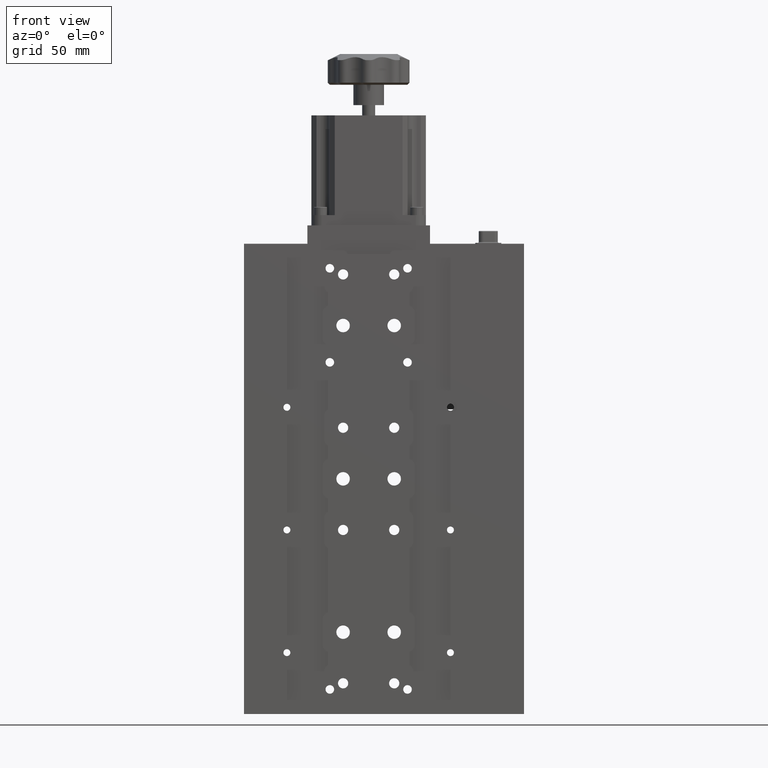
[diagram: clean part render]
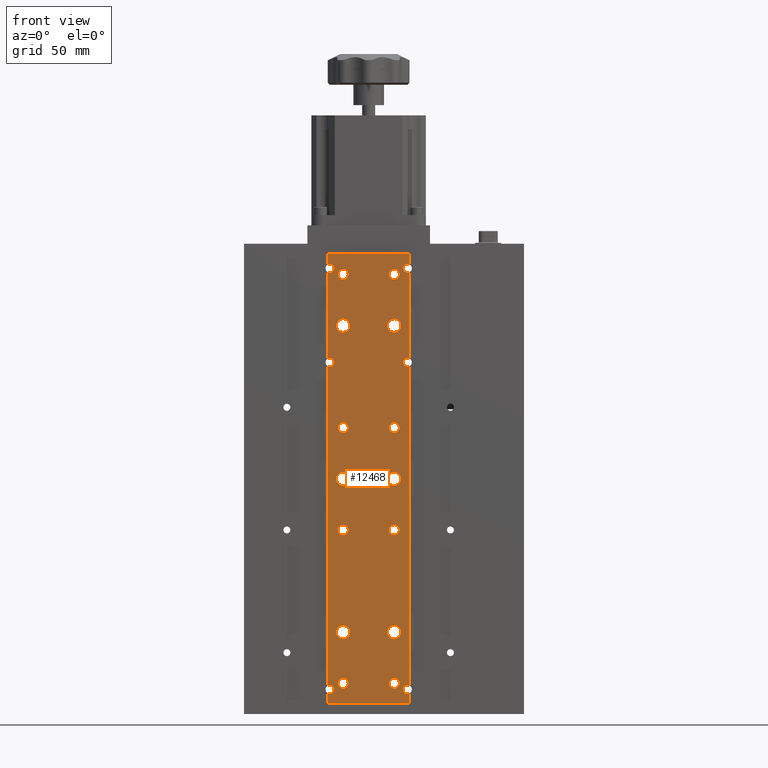
[diagram: same view with one face highlighted and labeled with its STEP entity id]
A machine part, front view. The second image highlights one B-rep face of the part: STEP entity #12468.
In plain terms, the highlighted planar face has unit normal (-0, 1, 0).
Its self-contained STEP definition (entity closure, byte-faithful):
#7 = VERTEX_POINT ( 'NONE', #35236 ) ;
#74 = EDGE_CURVE ( 'NONE', #13655, #19720, #29877, .T. ) ;
#163 = EDGE_CURVE ( 'NONE', #23391, #18481, #18264, .T. ) ;
#210 = CARTESIAN_POINT ( 'NONE',  ( 1.889191643960038200, -10.41765062064795100, -22.50000000000002100 ) ) ;
#300 = CARTESIAN_POINT ( 'NONE',  ( -30.61080835603996400, -10.41765062064794600, 101.1533814687380600 ) ) ;
#319 = VERTEX_POINT ( 'NONE', #24890 ) ;
#331 = DIRECTION ( 'NONE',  ( -3.689503073101735200E-032, 1.000000000000000000, 0.0000000000000000000 ) ) ;
#334 = ORIENTED_EDGE ( 'NONE', *, *, #8758, .T. ) ;
#611 = DIRECTION ( 'NONE',  ( 0.0000000000000000000, 0.0000000000000000000, 1.000000000000000000 ) ) ;
#769 = CARTESIAN_POINT ( 'NONE',  ( -23.11080835603996400, -10.41765062064794900, -22.50000000000002100 ) ) ;
#798 = VERTEX_POINT ( 'NONE', #35733 ) ;
#828 = CIRCLE ( 'NONE', #29492, 3.299999999999997200 ) ;
#915 = AXIS2_PLACEMENT_3D ( 'NONE', #25791, #8098, #28804 ) ;
#936 = DIRECTION ( 'NONE',  ( -3.689503073101735200E-032, 1.000000000000000000, 0.0000000000000000000 ) ) ;
#1067 = CIRCLE ( 'NONE', #36989, 3.299999999999997200 ) ;
#1087 = EDGE_CURVE ( 'NONE', #30317, #12799, #13424, .T. ) ;
#1179 = DIRECTION ( 'NONE',  ( -3.029454718961704600E-018, 1.000000000000000000, 0.0000000000000000000 ) ) ;
#1230 = EDGE_LOOP ( 'NONE', ( #31576, #36300 ) ) ;
#1477 = EDGE_CURVE ( 'NONE', #18481, #23391, #828, .T. ) ;
#1489 = DIRECTION ( 'NONE',  ( -3.689503073101735200E-032, 1.000000000000000000, 0.0000000000000000000 ) ) ;
#1515 = CARTESIAN_POINT ( 'NONE',  ( 1.889191643960030000, -10.41765062064795100, -3.299999999999990500 ) ) ;
#1526 = CARTESIAN_POINT ( 'NONE',  ( 8.389191643960048200, -10.41765062064794900, -105.1000000000000200 ) ) ;
#1527 = CIRCLE ( 'NONE', #4375, 3.299999999999997200 ) ;
#1621 = CIRCLE ( 'NONE', #4555, 2.099999999999992500 ) ;
#1865 = DIRECTION ( 'NONE',  ( -3.689503073101735200E-032, 1.000000000000000000, 0.0000000000000000000 ) ) ;
#1944 = ORIENTED_EDGE ( 'NONE', *, *, #23057, .T. ) ;
#1964 = DIRECTION ( 'NONE',  ( 0.0000000000000000000, 0.0000000000000000000, 1.000000000000000000 ) ) ;
#1970 = CIRCLE ( 'NONE', #13705, 2.499999999999995100 ) ;
#2168 = DIRECTION ( 'NONE',  ( -3.689503073101735200E-032, 1.000000000000000000, 0.0000000000000000000 ) ) ;
#2216 = VERTEX_POINT ( 'NONE', #25261 ) ;
#2352 = ORIENTED_EDGE ( 'NONE', *, *, #4692, .T. ) ;
#2441 = VERTEX_POINT ( 'NONE', #300 ) ;
#2572 = DIRECTION ( 'NONE',  ( 0.0000000000000000000, 0.0000000000000000000, 1.000000000000000000 ) ) ;
#2665 = AXIS2_PLACEMENT_3D ( 'NONE', #29030, #11299, #32004 ) ;
#2694 = DIRECTION ( 'NONE',  ( 0.0000000000000000000, 0.0000000000000000000, 1.000000000000000000 ) ) ;
#2871 = CARTESIAN_POINT ( 'NONE',  ( -23.11080835603996400, -10.41765062064795100, -75.00000000000004300 ) ) ;
#3091 = ORIENTED_EDGE ( 'NONE', *, *, #25057, .T. ) ;
#3203 = DIRECTION ( 'NONE',  ( -3.029454718961704600E-018, 1.000000000000000000, 0.0000000000000000000 ) ) ;
#3317 = CARTESIAN_POINT ( 'NONE',  ( 1.889191643960038500, -10.41765062064795300, 22.50000000000003600 ) ) ;
#3412 = FACE_BOUND ( 'NONE', #9287, .T. ) ;
#3420 = CIRCLE ( 'NONE', #15843, 3.299999999999997200 ) ;
#3555 = AXIS2_PLACEMENT_3D ( 'NONE', #26510, #8815, #29489 ) ;
#3567 = CIRCLE ( 'NONE', #4076, 2.500000000000002200 ) ;
#3596 = DIRECTION ( 'NONE',  ( 0.0000000000000000000, 0.0000000000000000000, 1.000000000000000000 ) ) ;
#3636 = CARTESIAN_POINT ( 'NONE',  ( -29.61080835603996400, -10.41765062064794900, -105.0999999999999900 ) ) ;
#3654 = EDGE_CURVE ( 'NONE', #17517, #18899, #3848, .T. ) ;
#3712 = EDGE_CURVE ( 'NONE', #30897, #16512, #12151, .T. ) ;
#3761 = ORIENTED_EDGE ( 'NONE', *, *, #163, .T. ) ;
#3765 = ORIENTED_EDGE ( 'NONE', *, *, #10013, .T. ) ;
#3786 = VERTEX_POINT ( 'NONE', #37012 ) ;
#3845 = DIRECTION ( 'NONE',  ( 0.0000000000000000000, 0.0000000000000000000, 1.000000000000000000 ) ) ;
#3848 = CIRCLE ( 'NONE', #18045, 3.299999999999997200 ) ;
#3970 = CIRCLE ( 'NONE', #27897, 2.099999999999997900 ) ;
#4040 = DIRECTION ( 'NONE',  ( -3.689503073101735200E-032, 1.000000000000000000, 0.0000000000000000000 ) ) ;
#4076 = AXIS2_PLACEMENT_3D ( 'NONE', #26361, #8659, #29337 ) ;
#4360 = FACE_BOUND ( 'NONE', #14785, .T. ) ;
#4375 = AXIS2_PLACEMENT_3D ( 'NONE', #27758, #10047, #30715 ) ;
#4550 = VERTEX_POINT ( 'NONE', #9975 ) ;
#4555 = AXIS2_PLACEMENT_3D ( 'NONE', #20934, #3203, #23910 ) ;
#4692 = EDGE_CURVE ( 'NONE', #4765, #34354, #36132, .T. ) ;
#4728 = LINE ( 'NONE', #10569, #19490 ) ;
#4752 = EDGE_CURVE ( 'NONE', #6655, #17128, #28244, .T. ) ;
#4765 = VERTEX_POINT ( 'NONE', #5051 ) ;
#4830 = CARTESIAN_POINT ( 'NONE',  ( -29.61080835603995700, -10.41765062064794900, 59.10000000000003000 ) ) ;
#4992 = CARTESIAN_POINT ( 'NONE',  ( -29.61080835603996400, -10.41765062064794900, 57.00000000000002800 ) ) ;
#5051 = CARTESIAN_POINT ( 'NONE',  ( -23.11080835603995700, -10.41765062064795100, -102.5000000000000600 ) ) ;
#5052 = AXIS2_PLACEMENT_3D ( 'NONE', #8193, #28897, #11172 ) ;
#5066 = AXIS2_PLACEMENT_3D ( 'NONE', #9271, #29921, #12200 ) ;
#5127 = DIRECTION ( 'NONE',  ( -1.000000000000000000, -3.029454718961630700E-018, 0.0000000000000000000 ) ) ;
#5156 = EDGE_CURVE ( 'NONE', #11420, #14132, #36952, .T. ) ;
#5179 = CARTESIAN_POINT ( 'NONE',  ( 1.889191643960029600, -10.41765062064795100, 5.204170427930439400E-015 ) ) ;
#5241 = ORIENTED_EDGE ( 'NONE', *, *, #32028, .T. ) ;
#5296 = FACE_BOUND ( 'NONE', #1230, .T. ) ;
#5463 = EDGE_LOOP ( 'NONE', ( #31289, #35993 ) ) ;
#5467 = AXIS2_PLACEMENT_3D ( 'NONE', #18886, #1179, #21867 ) ;
#5553 = VERTEX_POINT ( 'NONE', #27714 ) ;
#5581 = CARTESIAN_POINT ( 'NONE',  ( -29.61080835603996400, -10.41765062064794900, 57.00000000000002800 ) ) ;
#5770 = CARTESIAN_POINT ( 'NONE',  ( 9.389191643960026900, -10.41765062064794900, 104.8466185312619200 ) ) ;
#5817 = VECTOR ( 'NONE', #5830, 1000.000000000000000 ) ;
#5830 = DIRECTION ( 'NONE',  ( -1.000000000000000000, -3.029454718961630700E-018, 0.0000000000000000000 ) ) ;
#5897 = DIRECTION ( 'NONE',  ( 0.0000000000000000000, 0.0000000000000000000, 1.000000000000000000 ) ) ;
#5925 = ORIENTED_EDGE ( 'NONE', *, *, #11631, .T. ) ;
#5954 = DIRECTION ( 'NONE',  ( -3.689503073101735200E-032, 1.000000000000000000, 0.0000000000000000000 ) ) ;
#6055 = EDGE_CURVE ( 'NONE', #14368, #2216, #3970, .T. ) ;
#6077 = VERTEX_POINT ( 'NONE', #15746 ) ;
#6080 = VERTEX_POINT ( 'NONE', #24802 ) ;
#6110 = AXIS2_PLACEMENT_3D ( 'NONE', #37384, #19665, #1964 ) ;
#6149 = CARTESIAN_POINT ( 'NONE',  ( 9.389191643960037600, -10.41765062064794900, -110.0000000000000000 ) ) ;
#6181 = CARTESIAN_POINT ( 'NONE',  ( -23.11080835603995700, -10.41765062064795100, 99.99999999999997200 ) ) ;
#6388 = AXIS2_PLACEMENT_3D ( 'NONE', #12500, #33200, #15440 ) ;
#6451 = CARTESIAN_POINT ( 'NONE',  ( -30.61080835603996400, -10.41765062064794900, -150.0780488547035000 ) ) ;
#6563 = EDGE_LOOP ( 'NONE', ( #3091, #21632 ) ) ;
#6655 = VERTEX_POINT ( 'NONE', #25609 ) ;
#6708 = AXIS2_PLACEMENT_3D ( 'NONE', #4992, #25636, #7940 ) ;
#6710 = EDGE_CURVE ( 'NONE', #30582, #7, #12246, .T. ) ;
#7090 = CARTESIAN_POINT ( 'NONE',  ( 1.889191643960029600, -10.41765062064795100, 78.29999999999999700 ) ) ;
#7252 = CARTESIAN_POINT ( 'NONE',  ( -23.11080835603995700, -10.41765062064795100, -97.50000000000005700 ) ) ;
#7288 = DIRECTION ( 'NONE',  ( -3.689503073101735200E-032, 1.000000000000000000, 0.0000000000000000000 ) ) ;
#7512 = EDGE_LOOP ( 'NONE', ( #27814, #25047 ) ) ;
#7531 = AXIS2_PLACEMENT_3D ( 'NONE', #27502, #9811, #30471 ) ;
#7722 = EDGE_CURVE ( 'NONE', #11773, #21607, #36284, .T. ) ;
#7779 = AXIS2_PLACEMENT_3D ( 'NONE', #29032, #11301, #32006 ) ;
#7876 = AXIS2_PLACEMENT_3D ( 'NONE', #29644, #11911, #32613 ) ;
#7896 = VERTEX_POINT ( 'NONE', #38396 ) ;
#7940 = DIRECTION ( 'NONE',  ( 0.0000000000000000000, 0.0000000000000000000, 1.000000000000000000 ) ) ;
#7958 = DIRECTION ( 'NONE',  ( -3.689503073101735200E-032, 1.000000000000000000, 0.0000000000000000000 ) ) ;
#7999 = CARTESIAN_POINT ( 'NONE',  ( 1.889191643960029600, -10.41765062064795100, -75.00000000000000000 ) ) ;
#8000 = VERTEX_POINT ( 'NONE', #30147 ) ;
#8098 = DIRECTION ( 'NONE',  ( -3.029454718961630700E-018, 1.000000000000000000, 0.0000000000000000000 ) ) ;
#8125 = DIRECTION ( 'NONE',  ( 0.0000000000000000000, 0.0000000000000000000, 1.000000000000000000 ) ) ;
#8149 = CIRCLE ( 'NONE', #7876, 2.099999999999992500 ) ;
#8193 = CARTESIAN_POINT ( 'NONE',  ( -29.61080835603997100, -10.41765062064795100, 103.0000000000000000 ) ) ;
#8211 = ORIENTED_EDGE ( 'NONE', *, *, #23099, .T. ) ;
#8217 = CARTESIAN_POINT ( 'NONE',  ( 8.389191643960037600, -10.41765062064794900, -103.0000000000000400 ) ) ;
#8264 = CARTESIAN_POINT ( 'NONE',  ( -30.61080835603996400, -10.41765062064794900, -150.0780488547035000 ) ) ;
#8333 = CARTESIAN_POINT ( 'NONE',  ( -30.61080835603996400, -10.41765062064795100, 58.84661853126194600 ) ) ;
#8364 = ORIENTED_EDGE ( 'NONE', *, *, #6055, .T. ) ;
#8542 = DIRECTION ( 'NONE',  ( 0.0000000000000000000, 0.0000000000000000000, 1.000000000000000000 ) ) ;
#8621 = DIRECTION ( 'NONE',  ( -3.689503073101735200E-032, 1.000000000000000000, 0.0000000000000000000 ) ) ;
#8659 = DIRECTION ( 'NONE',  ( -3.689503073101735200E-032, 1.000000000000000000, 0.0000000000000000000 ) ) ;
#8758 = EDGE_CURVE ( 'NONE', #38380, #319, #37458, .T. ) ;
#8815 = DIRECTION ( 'NONE',  ( -3.689503073101735200E-032, 1.000000000000000000, 0.0000000000000000000 ) ) ;
#8825 = ORIENTED_EDGE ( 'NONE', *, *, #28540, .T. ) ;
#9168 = DIRECTION ( 'NONE',  ( 0.0000000000000000000, 0.0000000000000000000, 1.000000000000000000 ) ) ;
#9237 = ORIENTED_EDGE ( 'NONE', *, *, #10194, .T. ) ;
#9271 = CARTESIAN_POINT ( 'NONE',  ( 1.889191643960034700, -10.41765062064795100, 100.0000000000000100 ) ) ;
#9287 = EDGE_LOOP ( 'NONE', ( #22847, #22299 ) ) ;
#9486 = ORIENTED_EDGE ( 'NONE', *, *, #19658, .F. ) ;
#9542 = CARTESIAN_POINT ( 'NONE',  ( 1.889191643960029600, -10.41765062064795100, 5.204170427930439400E-015 ) ) ;
#9630 = ORIENTED_EDGE ( 'NONE', *, *, #12721, .T. ) ;
#9742 = EDGE_CURVE ( 'NONE', #319, #38380, #35496, .T. ) ;
#9811 = DIRECTION ( 'NONE',  ( -3.689503073101735200E-032, 1.000000000000000000, 0.0000000000000000000 ) ) ;
#9821 = CARTESIAN_POINT ( 'NONE',  ( -23.11080835603996400, -10.41765062064795100, -75.00000000000004300 ) ) ;
#9845 = LINE ( 'NONE', #36220, #24621 ) ;
#9869 = LINE ( 'NONE', #31874, #17662 ) ;
#9975 = CARTESIAN_POINT ( 'NONE',  ( -29.61080835603995700, -10.41765062064794900, 54.90000000000003400 ) ) ;
#9997 = CARTESIAN_POINT ( 'NONE',  ( -29.61080835603996400, -10.41765062064794900, -103.0000000000000000 ) ) ;
#10007 = CIRCLE ( 'NONE', #10535, 3.299999999999997200 ) ;
#10013 = EDGE_CURVE ( 'NONE', #19294, #11773, #11384, .T. ) ;
#10047 = DIRECTION ( 'NONE',  ( -3.689503073101735200E-032, 1.000000000000000000, 0.0000000000000000000 ) ) ;
#10194 = EDGE_CURVE ( 'NONE', #16593, #26742, #1621, .T. ) ;
#10205 = VERTEX_POINT ( 'NONE', #29744 ) ;
#10341 = AXIS2_PLACEMENT_3D ( 'NONE', #38000, #20284, #2572 ) ;
#10373 = FACE_OUTER_BOUND ( 'NONE', #15876, .T. ) ;
#10535 = AXIS2_PLACEMENT_3D ( 'NONE', #31261, #13539, #34233 ) ;
#10569 = CARTESIAN_POINT ( 'NONE',  ( 9.389191643960034000, -10.41765062064794900, -150.0780488547035000 ) ) ;
#10663 = CIRCLE ( 'NONE', #32054, 2.100000000000004500 ) ;
#10698 = CARTESIAN_POINT ( 'NONE',  ( 8.389191643960037600, -10.41765062064794900, -103.0000000000000400 ) ) ;
#10751 = EDGE_CURVE ( 'NONE', #32493, #2441, #19798, .T. ) ;
#10966 = DIRECTION ( 'NONE',  ( 0.0000000000000000000, 0.0000000000000000000, 1.000000000000000000 ) ) ;
#11172 = DIRECTION ( 'NONE',  ( 0.0000000000000000000, 0.0000000000000000000, 1.000000000000000000 ) ) ;
#11191 = DIRECTION ( 'NONE',  ( -1.000000000000000000, 0.0000000000000000000, 0.0000000000000000000 ) ) ;
#11279 = CARTESIAN_POINT ( 'NONE',  ( -23.11080835603997100, -10.41765062064795100, -3.299999999999992300 ) ) ;
#11283 = FACE_BOUND ( 'NONE', #36339, .T. ) ;
#11298 = CIRCLE ( 'NONE', #5066, 2.500000000000002200 ) ;
#11299 = DIRECTION ( 'NONE',  ( -3.029454718961704600E-018, 1.000000000000000000, 0.0000000000000000000 ) ) ;
#11301 = DIRECTION ( 'NONE',  ( -3.689503073101735200E-032, 1.000000000000000000, 0.0000000000000000000 ) ) ;
#11384 = LINE ( 'NONE', #6451, #34075 ) ;
#11417 = ORIENTED_EDGE ( 'NONE', *, *, #20339, .T. ) ;
#11420 = VERTEX_POINT ( 'NONE', #26547 ) ;
#11631 = EDGE_CURVE ( 'NONE', #32331, #6080, #13244, .T. ) ;
#11632 = EDGE_CURVE ( 'NONE', #21607, #22272, #35949, .T. ) ;
#11636 = CIRCLE ( 'NONE', #20758, 2.099999999999992500 ) ;
#11714 = AXIS2_PLACEMENT_3D ( 'NONE', #25648, #7958, #28659 ) ;
#11726 = CARTESIAN_POINT ( 'NONE',  ( 1.889191643960029600, -10.41765062064795100, -71.70000000000000300 ) ) ;
#11773 = VERTEX_POINT ( 'NONE', #37232 ) ;
#11911 = DIRECTION ( 'NONE',  ( -3.029454718961704600E-018, 1.000000000000000000, 0.0000000000000000000 ) ) ;
#12032 = EDGE_CURVE ( 'NONE', #7896, #19435, #13656, .T. ) ;
#12151 = CIRCLE ( 'NONE', #5467, 2.099999999999992500 ) ;
#12200 = DIRECTION ( 'NONE',  ( 0.0000000000000000000, 0.0000000000000000000, 1.000000000000000000 ) ) ;
#12219 = FACE_BOUND ( 'NONE', #28078, .T. ) ;
#12246 = CIRCLE ( 'NONE', #10341, 2.500000000000002200 ) ;
#12287 = CARTESIAN_POINT ( 'NONE',  ( -23.11080835603996400, -10.41765062064795100, 27.50000000000002500 ) ) ;
#12468 = ADVANCED_FACE ( 'NONE', ( #28894, #5296, #20053, #13138, #12219, #4360, #34894, #27026, #19119, #11283, #3412, #33971, #26078, #18203, #10373 ), #28548, .F. ) ;
#12475 = ORIENTED_EDGE ( 'NONE', *, *, #4752, .T. ) ;
#12495 = DIRECTION ( 'NONE',  ( 0.0000000000000000000, 0.0000000000000000000, 1.000000000000000000 ) ) ;
#12500 = CARTESIAN_POINT ( 'NONE',  ( 1.889191643960029600, -10.41765062064795100, 75.00000000000000000 ) ) ;
#12528 = VERTEX_POINT ( 'NONE', #35136 ) ;
#12701 = AXIS2_PLACEMENT_3D ( 'NONE', #5179, #25815, #8125 ) ;
#12721 = EDGE_CURVE ( 'NONE', #22272, #12528, #28822, .T. ) ;
#12768 = DIRECTION ( 'NONE',  ( 0.0000000000000000000, 0.0000000000000000000, 1.000000000000000000 ) ) ;
#12799 = VERTEX_POINT ( 'NONE', #210 ) ;
#12847 = DIRECTION ( 'NONE',  ( 0.0000000000000000000, 0.0000000000000000000, 1.000000000000000000 ) ) ;
#12861 = EDGE_CURVE ( 'NONE', #10205, #3786, #9845, .T. ) ;
#12935 = ORIENTED_EDGE ( 'NONE', *, *, #10751, .T. ) ;
#12954 = DIRECTION ( 'NONE',  ( 0.0000000000000000000, 0.0000000000000000000, 1.000000000000000000 ) ) ;
#13138 = FACE_BOUND ( 'NONE', #27334, .T. ) ;
#13149 = VECTOR ( 'NONE', #25946, 1000.000000000000000 ) ;
#13244 = CIRCLE ( 'NONE', #14491, 2.499999999999995100 ) ;
#13320 = EDGE_CURVE ( 'NONE', #4550, #19294, #21256, .T. ) ;
#13424 = CIRCLE ( 'NONE', #21766, 2.499999999999995100 ) ;
#13539 = DIRECTION ( 'NONE',  ( -3.689503073101735200E-032, 1.000000000000000000, 0.0000000000000000000 ) ) ;
#13583 = CARTESIAN_POINT ( 'NONE',  ( 9.389191643960026900, -10.41765062064795100, 55.15338146873806800 ) ) ;
#13643 = DIRECTION ( 'NONE',  ( -1.000000000000000000, 0.0000000000000000000, 0.0000000000000000000 ) ) ;
#13655 = VERTEX_POINT ( 'NONE', #29251 ) ;
#13656 = LINE ( 'NONE', #26500, #5817 ) ;
#13705 = AXIS2_PLACEMENT_3D ( 'NONE', #13771, #34456, #16724 ) ;
#13761 = VERTEX_POINT ( 'NONE', #35736 ) ;
#13771 = CARTESIAN_POINT ( 'NONE',  ( 1.889191643960038200, -10.41765062064795100, -25.00000000000001400 ) ) ;
#13791 = EDGE_CURVE ( 'NONE', #13893, #24297, #33663, .T. ) ;
#13893 = VERTEX_POINT ( 'NONE', #8333 ) ;
#13913 = ORIENTED_EDGE ( 'NONE', *, *, #27408, .T. ) ;
#14132 = VERTEX_POINT ( 'NONE', #769 ) ;
#14368 = VERTEX_POINT ( 'NONE', #13583 ) ;
#14420 = VERTEX_POINT ( 'NONE', #37493 ) ;
#14491 = AXIS2_PLACEMENT_3D ( 'NONE', #21725, #4040, #24716 ) ;
#14785 = EDGE_LOOP ( 'NONE', ( #19312, #33718 ) ) ;
#14913 = CIRCLE ( 'NONE', #28173, 2.500000000000002200 ) ;
#15217 = AXIS2_PLACEMENT_3D ( 'NONE', #38115, #20419, #2694 ) ;
#15299 = AXIS2_PLACEMENT_3D ( 'NONE', #23645, #5954, #26621 ) ;
#15440 = DIRECTION ( 'NONE',  ( 0.0000000000000000000, 0.0000000000000000000, 1.000000000000000000 ) ) ;
#15535 = CARTESIAN_POINT ( 'NONE',  ( -23.11080835603997100, -10.41765062064795100, 74.99999999999995700 ) ) ;
#15598 = VECTOR ( 'NONE', #3845, 1000.000000000000000 ) ;
#15672 = VERTEX_POINT ( 'NONE', #5770 ) ;
#15731 = CARTESIAN_POINT ( 'NONE',  ( 1.889191643960038500, -10.41765062064795100, -27.50000000000001100 ) ) ;
#15746 = CARTESIAN_POINT ( 'NONE',  ( 8.389191643960051800, -10.41765062064795100, 59.10000000000003000 ) ) ;
#15752 = CARTESIAN_POINT ( 'NONE',  ( 1.889191643960034700, -10.41765062064795100, -97.50000000000001400 ) ) ;
#15783 = ORIENTED_EDGE ( 'NONE', *, *, #1477, .T. ) ;
#15843 = AXIS2_PLACEMENT_3D ( 'NONE', #2871, #23584, #5897 ) ;
#15865 = DIRECTION ( 'NONE',  ( -3.689503073101735200E-032, 1.000000000000000000, 0.0000000000000000000 ) ) ;
#15876 = EDGE_LOOP ( 'NONE', ( #3765, #29696, #37310, #9630, #27493, #9486, #23697, #9237, #8211, #37375, #1944, #8364, #8825, #13913, #23196, #16925, #18794, #34902, #35372, #22319, #22928, #29246, #25903, #12935, #25326, #32139, #11417, #23155 ) ) ;
#15882 = VECTOR ( 'NONE', #12847, 1000.000000000000000 ) ;
#15906 = AXIS2_PLACEMENT_3D ( 'NONE', #16632, #37333, #19619 ) ;
#15972 = VECTOR ( 'NONE', #20912, 1000.000000000000000 ) ;
#16271 = CARTESIAN_POINT ( 'NONE',  ( -23.11080835603996400, -10.41765062064795100, 25.00000000000002800 ) ) ;
#16325 = EDGE_CURVE ( 'NONE', #27860, #28243, #18520, .T. ) ;
#16512 = VERTEX_POINT ( 'NONE', #32200 ) ;
#16587 = CIRCLE ( 'NONE', #5052, 2.100000000000004500 ) ;
#16593 = VERTEX_POINT ( 'NONE', #17949 ) ;
#16632 = CARTESIAN_POINT ( 'NONE',  ( -23.11080835603995700, -10.41765062064795100, -100.0000000000000600 ) ) ;
#16636 = DIRECTION ( 'NONE',  ( -3.689503073101735200E-032, 1.000000000000000000, 0.0000000000000000000 ) ) ;
#16724 = DIRECTION ( 'NONE',  ( 0.0000000000000000000, 0.0000000000000000000, 1.000000000000000000 ) ) ;
#16910 = LINE ( 'NONE', #35693, #15972 ) ;
#16925 = ORIENTED_EDGE ( 'NONE', *, *, #34702, .T. ) ;
#17060 = CARTESIAN_POINT ( 'NONE',  ( -29.61080835603996400, -10.41765062064794900, -103.0000000000000000 ) ) ;
#17128 = VERTEX_POINT ( 'NONE', #11726 ) ;
#17280 = EDGE_CURVE ( 'NONE', #32860, #16593, #38272, .T. ) ;
#17289 = CARTESIAN_POINT ( 'NONE',  ( -29.61080835603997100, -10.41765062064795100, 103.0000000000000000 ) ) ;
#17388 = EDGE_CURVE ( 'NONE', #14132, #11420, #17879, .T. ) ;
#17467 = CARTESIAN_POINT ( 'NONE',  ( -23.11080835603996400, -10.41765062064795100, -71.70000000000004500 ) ) ;
#17517 = VERTEX_POINT ( 'NONE', #22549 ) ;
#17583 = CIRCLE ( 'NONE', #24914, 2.099999999999997900 ) ;
#17605 = EDGE_CURVE ( 'NONE', #16512, #15672, #18769, .T. ) ;
#17662 = VECTOR ( 'NONE', #5127, 1000.000000000000000 ) ;
#17677 = CIRCLE ( 'NONE', #11714, 2.099999999999997900 ) ;
#17879 = CIRCLE ( 'NONE', #24007, 2.499999999999995100 ) ;
#17949 = CARTESIAN_POINT ( 'NONE',  ( 9.389191643960041100, -10.41765062064795100, -104.8466185312619200 ) ) ;
#18033 = CARTESIAN_POINT ( 'NONE',  ( 1.889191643960038200, -10.41765062064795300, 25.00000000000002800 ) ) ;
#18045 = AXIS2_PLACEMENT_3D ( 'NONE', #15535, #36292, #18506 ) ;
#18103 = EDGE_LOOP ( 'NONE', ( #35237, #22209 ) ) ;
#18114 = AXIS2_PLACEMENT_3D ( 'NONE', #16271, #36988, #19242 ) ;
#18203 = FACE_BOUND ( 'NONE', #18103, .T. ) ;
#18264 = CIRCLE ( 'NONE', #6388, 3.299999999999997200 ) ;
#18315 = DIRECTION ( 'NONE',  ( -3.689503073101735200E-032, 1.000000000000000000, 0.0000000000000000000 ) ) ;
#18403 = EDGE_LOOP ( 'NONE', ( #22609, #5925 ) ) ;
#18472 = AXIS2_PLACEMENT_3D ( 'NONE', #9997, #30660, #12954 ) ;
#18481 = VERTEX_POINT ( 'NONE', #7090 ) ;
#18506 = DIRECTION ( 'NONE',  ( 0.0000000000000000000, 0.0000000000000000000, 1.000000000000000000 ) ) ;
#18520 = CIRCLE ( 'NONE', #6110, 2.500000000000002200 ) ;
#18639 = CARTESIAN_POINT ( 'NONE',  ( -29.61080835603996400, -10.41765062064794900, 57.00000000000002800 ) ) ;
#18745 = CARTESIAN_POINT ( 'NONE',  ( 9.389191643960034000, -10.41765062064794900, -150.0780488547035000 ) ) ;
#18769 = CIRCLE ( 'NONE', #2665, 2.099999999999992500 ) ;
#18790 = CARTESIAN_POINT ( 'NONE',  ( -29.61080835603996400, -10.41765062064795100, 100.8999999999999900 ) ) ;
#18794 = ORIENTED_EDGE ( 'NONE', *, *, #3712, .T. ) ;
#18886 = CARTESIAN_POINT ( 'NONE',  ( 8.389191643960030500, -10.41765062064794900, 102.9999999999999600 ) ) ;
#18899 = VERTEX_POINT ( 'NONE', #36715 ) ;
#19119 = FACE_BOUND ( 'NONE', #5463, .T. ) ;
#19186 = CARTESIAN_POINT ( 'NONE',  ( -23.11080835603996400, -10.41765062064795100, 25.00000000000002800 ) ) ;
#19242 = DIRECTION ( 'NONE',  ( 0.0000000000000000000, 0.0000000000000000000, 1.000000000000000000 ) ) ;
#19294 = VERTEX_POINT ( 'NONE', #33205 ) ;
#19312 = ORIENTED_EDGE ( 'NONE', *, *, #27240, .T. ) ;
#19337 = ORIENTED_EDGE ( 'NONE', *, *, #26015, .T. ) ;
#19435 = VERTEX_POINT ( 'NONE', #33826 ) ;
#19490 = VECTOR ( 'NONE', #34222, 1000.000000000000000 ) ;
#19574 = CARTESIAN_POINT ( 'NONE',  ( -23.11080835603995700, -10.41765062064795100, 99.99999999999997200 ) ) ;
#19619 = DIRECTION ( 'NONE',  ( 0.0000000000000000000, 0.0000000000000000000, 1.000000000000000000 ) ) ;
#19658 = EDGE_CURVE ( 'NONE', #32860, #13761, #9869, .T. ) ;
#19665 = DIRECTION ( 'NONE',  ( -3.689503073101735200E-032, 1.000000000000000000, 0.0000000000000000000 ) ) ;
#19720 = VERTEX_POINT ( 'NONE', #34961 ) ;
#19744 = VERTEX_POINT ( 'NONE', #17467 ) ;
#19798 = CIRCLE ( 'NONE', #7531, 2.100000000000004500 ) ;
#19879 = CARTESIAN_POINT ( 'NONE',  ( 1.889191643960038200, -10.41765062064795100, -25.00000000000001400 ) ) ;
#20027 = DIRECTION ( 'NONE',  ( 0.0000000000000000000, 0.0000000000000000000, 1.000000000000000000 ) ) ;
#20053 = FACE_BOUND ( 'NONE', #6563, .T. ) ;
#20114 = CIRCLE ( 'NONE', #31029, 3.299999999999995800 ) ;
#20267 = DIRECTION ( 'NONE',  ( 0.0000000000000000000, 0.0000000000000000000, 1.000000000000000000 ) ) ;
#20284 = DIRECTION ( 'NONE',  ( -3.689503073101735200E-032, 1.000000000000000000, 0.0000000000000000000 ) ) ;
#20328 = EDGE_CURVE ( 'NONE', #8000, #5553, #10663, .T. ) ;
#20339 = EDGE_CURVE ( 'NONE', #24297, #4550, #26371, .T. ) ;
#20398 = EDGE_CURVE ( 'NONE', #34354, #4765, #32399, .T. ) ;
#20419 = DIRECTION ( 'NONE',  ( -3.689503073101735200E-032, 1.000000000000000000, 0.0000000000000000000 ) ) ;
#20758 = AXIS2_PLACEMENT_3D ( 'NONE', #10698, #31383, #13643 ) ;
#20912 = DIRECTION ( 'NONE',  ( 0.0000000000000000000, 0.0000000000000000000, -1.000000000000000000 ) ) ;
#20934 = CARTESIAN_POINT ( 'NONE',  ( 8.389191643960037600, -10.41765062064794900, -103.0000000000000400 ) ) ;
#21006 = LINE ( 'NONE', #8264, #13149 ) ;
#21023 = DIRECTION ( 'NONE',  ( 0.0000000000000000000, 0.0000000000000000000, 1.000000000000000000 ) ) ;
#21256 = CIRCLE ( 'NONE', #27515, 2.099999999999997900 ) ;
#21520 = CARTESIAN_POINT ( 'NONE',  ( 9.389191643960034000, -10.41765062064794900, -150.0780488547035000 ) ) ;
#21607 = VERTEX_POINT ( 'NONE', #35396 ) ;
#21628 = DIRECTION ( 'NONE',  ( 0.0000000000000000000, 0.0000000000000000000, 1.000000000000000000 ) ) ;
#21632 = ORIENTED_EDGE ( 'NONE', *, *, #32076, .T. ) ;
#21725 = CARTESIAN_POINT ( 'NONE',  ( 1.889191643960038200, -10.41765062064795300, 25.00000000000002800 ) ) ;
#21766 = AXIS2_PLACEMENT_3D ( 'NONE', #19879, #2168, #22843 ) ;
#21867 = DIRECTION ( 'NONE',  ( -1.000000000000000000, 0.0000000000000000000, 0.0000000000000000000 ) ) ;
#22014 = ORIENTED_EDGE ( 'NONE', *, *, #20398, .T. ) ;
#22169 = DIRECTION ( 'NONE',  ( 0.0000000000000000000, 0.0000000000000000000, 1.000000000000000000 ) ) ;
#22209 = ORIENTED_EDGE ( 'NONE', *, *, #1087, .T. ) ;
#22261 = AXIS2_PLACEMENT_3D ( 'NONE', #17060, #37733, #20027 ) ;
#22272 = VERTEX_POINT ( 'NONE', #3636 ) ;
#22299 = ORIENTED_EDGE ( 'NONE', *, *, #6710, .T. ) ;
#22319 = ORIENTED_EDGE ( 'NONE', *, *, #12032, .T. ) ;
#22533 = AXIS2_PLACEMENT_3D ( 'NONE', #8217, #28916, #11191 ) ;
#22549 = CARTESIAN_POINT ( 'NONE',  ( -23.11080835603997100, -10.41765062064795100, 71.69999999999996000 ) ) ;
#22552 = DIRECTION ( 'NONE',  ( 0.0000000000000000000, 0.0000000000000000000, 1.000000000000000000 ) ) ;
#22609 = ORIENTED_EDGE ( 'NONE', *, *, #32316, .T. ) ;
#22843 = DIRECTION ( 'NONE',  ( 0.0000000000000000000, 0.0000000000000000000, 1.000000000000000000 ) ) ;
#22847 = ORIENTED_EDGE ( 'NONE', *, *, #32954, .T. ) ;
#22928 = ORIENTED_EDGE ( 'NONE', *, *, #37069, .T. ) ;
#22942 = AXIS2_PLACEMENT_3D ( 'NONE', #6181, #26860, #9168 ) ;
#23057 = EDGE_CURVE ( 'NONE', #798, #14368, #4728, .T. ) ;
#23099 = EDGE_CURVE ( 'NONE', #26742, #25828, #11636, .T. ) ;
#23155 = ORIENTED_EDGE ( 'NONE', *, *, #13320, .T. ) ;
#23196 = ORIENTED_EDGE ( 'NONE', *, *, #12861, .T. ) ;
#23391 = VERTEX_POINT ( 'NONE', #26837 ) ;
#23584 = DIRECTION ( 'NONE',  ( -3.689503073101735200E-032, 1.000000000000000000, 0.0000000000000000000 ) ) ;
#23645 = CARTESIAN_POINT ( 'NONE',  ( -29.61080835603996400, -10.41765062064794900, -103.0000000000000000 ) ) ;
#23697 = ORIENTED_EDGE ( 'NONE', *, *, #17280, .T. ) ;
#23701 = EDGE_CURVE ( 'NONE', #2441, #13893, #28685, .T. ) ;
#23770 = LINE ( 'NONE', #18745, #15882 ) ;
#23869 = AXIS2_PLACEMENT_3D ( 'NONE', #7999, #28700, #10966 ) ;
#23910 = DIRECTION ( 'NONE',  ( -1.000000000000000000, 0.0000000000000000000, 0.0000000000000000000 ) ) ;
#24007 = AXIS2_PLACEMENT_3D ( 'NONE', #25018, #7288, #28002 ) ;
#24297 = VERTEX_POINT ( 'NONE', #4830 ) ;
#24621 = VECTOR ( 'NONE', #3596, 1000.000000000000000 ) ;
#24716 = DIRECTION ( 'NONE',  ( 0.0000000000000000000, 0.0000000000000000000, 1.000000000000000000 ) ) ;
#24802 = CARTESIAN_POINT ( 'NONE',  ( 1.889191643960038200, -10.41765062064795300, 27.50000000000002500 ) ) ;
#24890 = CARTESIAN_POINT ( 'NONE',  ( -23.11080835603995700, -10.41765062064795100, 22.50000000000003600 ) ) ;
#24914 = AXIS2_PLACEMENT_3D ( 'NONE', #26330, #8621, #29310 ) ;
#25018 = CARTESIAN_POINT ( 'NONE',  ( -23.11080835603996400, -10.41765062064794900, -25.00000000000001400 ) ) ;
#25047 = ORIENTED_EDGE ( 'NONE', *, *, #5156, .T. ) ;
#25057 = EDGE_CURVE ( 'NONE', #14420, #28317, #20114, .T. ) ;
#25223 = DIRECTION ( 'NONE',  ( 0.0000000000000000000, 0.0000000000000000000, -1.000000000000000000 ) ) ;
#25261 = CARTESIAN_POINT ( 'NONE',  ( 8.389191643960051800, -10.41765062064795100, 54.90000000000003400 ) ) ;
#25325 = EDGE_CURVE ( 'NONE', #5553, #32493, #16587, .T. ) ;
#25326 = ORIENTED_EDGE ( 'NONE', *, *, #23701, .T. ) ;
#25609 = CARTESIAN_POINT ( 'NONE',  ( 1.889191643960030000, -10.41765062064795100, -78.29999999999999700 ) ) ;
#25636 = DIRECTION ( 'NONE',  ( -3.689503073101735200E-032, 1.000000000000000000, 0.0000000000000000000 ) ) ;
#25648 = CARTESIAN_POINT ( 'NONE',  ( 8.389191643960041100, -10.41765062064795100, 57.00000000000002800 ) ) ;
#25680 = VERTEX_POINT ( 'NONE', #36497 ) ;
#25791 = CARTESIAN_POINT ( 'NONE',  ( -74.98580835603995400, -10.41765062064794900, -110.0000000000000400 ) ) ;
#25798 = AXIS2_PLACEMENT_3D ( 'NONE', #18033, #331, #21023 ) ;
#25815 = DIRECTION ( 'NONE',  ( -3.689503073101735200E-032, 1.000000000000000000, 0.0000000000000000000 ) ) ;
#25828 = VERTEX_POINT ( 'NONE', #37119 ) ;
#25903 = ORIENTED_EDGE ( 'NONE', *, *, #25325, .T. ) ;
#25946 = DIRECTION ( 'NONE',  ( 0.0000000000000000000, 0.0000000000000000000, -1.000000000000000000 ) ) ;
#26015 = EDGE_CURVE ( 'NONE', #28243, #27860, #3567, .T. ) ;
#26078 = FACE_BOUND ( 'NONE', #27124, .T. ) ;
#26236 = DIRECTION ( 'NONE',  ( -3.689503073101735200E-032, 1.000000000000000000, 0.0000000000000000000 ) ) ;
#26330 = CARTESIAN_POINT ( 'NONE',  ( 8.389191643960041100, -10.41765062064795100, 57.00000000000002800 ) ) ;
#26361 = CARTESIAN_POINT ( 'NONE',  ( 1.889191643960034700, -10.41765062064795100, -100.0000000000000100 ) ) ;
#26371 = CIRCLE ( 'NONE', #36050, 2.099999999999997900 ) ;
#26408 = EDGE_CURVE ( 'NONE', #25680, #31035, #10007, .T. ) ;
#26500 = CARTESIAN_POINT ( 'NONE',  ( -74.98580835603995400, -10.41765062064795400, 109.9999999999999600 ) ) ;
#26510 = CARTESIAN_POINT ( 'NONE',  ( -23.11080835603995700, -10.41765062064795100, -100.0000000000000600 ) ) ;
#26547 = CARTESIAN_POINT ( 'NONE',  ( -23.11080835603995700, -10.41765062064794900, -27.50000000000001100 ) ) ;
#26582 = CIRCLE ( 'NONE', #22533, 2.099999999999992500 ) ;
#26621 = DIRECTION ( 'NONE',  ( 0.0000000000000000000, 0.0000000000000000000, 1.000000000000000000 ) ) ;
#26742 = VERTEX_POINT ( 'NONE', #1526 ) ;
#26837 = CARTESIAN_POINT ( 'NONE',  ( 1.889191643960030000, -10.41765062064795100, 71.70000000000000300 ) ) ;
#26860 = DIRECTION ( 'NONE',  ( -3.689503073101735200E-032, 1.000000000000000000, 0.0000000000000000000 ) ) ;
#27026 = FACE_BOUND ( 'NONE', #7512, .T. ) ;
#27124 = EDGE_LOOP ( 'NONE', ( #19337, #30205 ) ) ;
#27132 = DIRECTION ( 'NONE',  ( 0.0000000000000000000, 0.0000000000000000000, -1.000000000000000000 ) ) ;
#27240 = EDGE_CURVE ( 'NONE', #19744, #35921, #1067, .T. ) ;
#27334 = EDGE_LOOP ( 'NONE', ( #37277, #29369 ) ) ;
#27401 = EDGE_CURVE ( 'NONE', #12799, #30317, #1970, .T. ) ;
#27408 = EDGE_CURVE ( 'NONE', #6077, #10205, #17677, .T. ) ;
#27493 = ORIENTED_EDGE ( 'NONE', *, *, #35221, .T. ) ;
#27502 = CARTESIAN_POINT ( 'NONE',  ( -29.61080835603997100, -10.41765062064795100, 103.0000000000000000 ) ) ;
#27515 = AXIS2_PLACEMENT_3D ( 'NONE', #18639, #936, #21628 ) ;
#27714 = CARTESIAN_POINT ( 'NONE',  ( -29.61080835603996400, -10.41765062064795100, 105.0999999999999900 ) ) ;
#27758 = CARTESIAN_POINT ( 'NONE',  ( -23.11080835603997100, -10.41765062064795100, 5.204170427930421300E-015 ) ) ;
#27814 = ORIENTED_EDGE ( 'NONE', *, *, #17388, .T. ) ;
#27860 = VERTEX_POINT ( 'NONE', #31457 ) ;
#27897 = AXIS2_PLACEMENT_3D ( 'NONE', #33606, #15865, #36589 ) ;
#28002 = DIRECTION ( 'NONE',  ( 0.0000000000000000000, 0.0000000000000000000, 1.000000000000000000 ) ) ;
#28078 = EDGE_LOOP ( 'NONE', ( #5241, #12475 ) ) ;
#28173 = AXIS2_PLACEMENT_3D ( 'NONE', #19574, #1865, #22552 ) ;
#28236 = CARTESIAN_POINT ( 'NONE',  ( -30.61080835603996400, -10.41765062064794900, -150.0780488547035000 ) ) ;
#28243 = VERTEX_POINT ( 'NONE', #15752 ) ;
#28244 = CIRCLE ( 'NONE', #23869, 3.299999999999997200 ) ;
#28317 = VERTEX_POINT ( 'NONE', #1515 ) ;
#28540 = EDGE_CURVE ( 'NONE', #2216, #6077, #17583, .T. ) ;
#28548 = PLANE ( 'NONE',  #915 ) ;
#28659 = DIRECTION ( 'NONE',  ( 0.0000000000000000000, 0.0000000000000000000, 1.000000000000000000 ) ) ;
#28685 = LINE ( 'NONE', #28236, #36549 ) ;
#28700 = DIRECTION ( 'NONE',  ( -3.689503073101735200E-032, 1.000000000000000000, 0.0000000000000000000 ) ) ;
#28804 = DIRECTION ( 'NONE',  ( -1.000000000000000000, -3.029454718961630700E-018, 0.0000000000000000000 ) ) ;
#28822 = CIRCLE ( 'NONE', #15299, 2.100000000000004500 ) ;
#28894 = FACE_BOUND ( 'NONE', #38184, .T. ) ;
#28897 = DIRECTION ( 'NONE',  ( -3.689503073101735200E-032, 1.000000000000000000, 0.0000000000000000000 ) ) ;
#28916 = DIRECTION ( 'NONE',  ( -3.029454718961704600E-018, 1.000000000000000000, 0.0000000000000000000 ) ) ;
#28973 = CIRCLE ( 'NONE', #25798, 2.499999999999995100 ) ;
#29030 = CARTESIAN_POINT ( 'NONE',  ( 8.389191643960030500, -10.41765062064794900, 102.9999999999999600 ) ) ;
#29032 = CARTESIAN_POINT ( 'NONE',  ( -23.11080835603996400, -10.41765062064794900, -25.00000000000001400 ) ) ;
#29246 = ORIENTED_EDGE ( 'NONE', *, *, #20328, .T. ) ;
#29251 = CARTESIAN_POINT ( 'NONE',  ( -23.11080835603995000, -10.41765062064795100, 97.49999999999997200 ) ) ;
#29310 = DIRECTION ( 'NONE',  ( 0.0000000000000000000, 0.0000000000000000000, 1.000000000000000000 ) ) ;
#29337 = DIRECTION ( 'NONE',  ( 0.0000000000000000000, 0.0000000000000000000, 1.000000000000000000 ) ) ;
#29369 = ORIENTED_EDGE ( 'NONE', *, *, #35522, .T. ) ;
#29489 = DIRECTION ( 'NONE',  ( 0.0000000000000000000, 0.0000000000000000000, 1.000000000000000000 ) ) ;
#29492 = AXIS2_PLACEMENT_3D ( 'NONE', #36102, #18315, #611 ) ;
#29644 = CARTESIAN_POINT ( 'NONE',  ( 8.389191643960030500, -10.41765062064794900, 102.9999999999999600 ) ) ;
#29696 = ORIENTED_EDGE ( 'NONE', *, *, #7722, .T. ) ;
#29744 = CARTESIAN_POINT ( 'NONE',  ( 9.389191643960034000, -10.41765062064795600, 58.84661853126194600 ) ) ;
#29877 = CIRCLE ( 'NONE', #22942, 2.500000000000002200 ) ;
#29897 = ORIENTED_EDGE ( 'NONE', *, *, #9742, .T. ) ;
#29921 = DIRECTION ( 'NONE',  ( -3.689503073101735200E-032, 1.000000000000000000, 0.0000000000000000000 ) ) ;
#29935 = CIRCLE ( 'NONE', #37198, 3.299999999999997200 ) ;
#30147 = CARTESIAN_POINT ( 'NONE',  ( -30.61080835603997100, -10.41765062064795100, 104.8466185312619200 ) ) ;
#30205 = ORIENTED_EDGE ( 'NONE', *, *, #16325, .T. ) ;
#30213 = DIRECTION ( 'NONE',  ( -3.689503073101735200E-032, 1.000000000000000000, 0.0000000000000000000 ) ) ;
#30317 = VERTEX_POINT ( 'NONE', #15731 ) ;
#30471 = DIRECTION ( 'NONE',  ( 0.0000000000000000000, 0.0000000000000000000, 1.000000000000000000 ) ) ;
#30480 = DIRECTION ( 'NONE',  ( -3.689503073101735200E-032, 1.000000000000000000, 0.0000000000000000000 ) ) ;
#30582 = VERTEX_POINT ( 'NONE', #32128 ) ;
#30660 = DIRECTION ( 'NONE',  ( -3.689503073101735200E-032, 1.000000000000000000, 0.0000000000000000000 ) ) ;
#30715 = DIRECTION ( 'NONE',  ( 0.0000000000000000000, 0.0000000000000000000, 1.000000000000000000 ) ) ;
#30897 = VERTEX_POINT ( 'NONE', #37152 ) ;
#31029 = AXIS2_PLACEMENT_3D ( 'NONE', #9542, #30213, #12495 ) ;
#31035 = VERTEX_POINT ( 'NONE', #11279 ) ;
#31134 = CIRCLE ( 'NONE', #15217, 3.299999999999997200 ) ;
#31261 = CARTESIAN_POINT ( 'NONE',  ( -23.11080835603997100, -10.41765062064795100, 5.204170427930421300E-015 ) ) ;
#31289 = ORIENTED_EDGE ( 'NONE', *, *, #35707, .T. ) ;
#31383 = DIRECTION ( 'NONE',  ( -3.029454718961704600E-018, 1.000000000000000000, 0.0000000000000000000 ) ) ;
#31457 = CARTESIAN_POINT ( 'NONE',  ( 1.889191643960034900, -10.41765062064795100, -102.5000000000000300 ) ) ;
#31576 = ORIENTED_EDGE ( 'NONE', *, *, #33351, .T. ) ;
#31874 = CARTESIAN_POINT ( 'NONE',  ( -74.98580835603995400, -10.41765062064794900, -110.0000000000000400 ) ) ;
#32004 = DIRECTION ( 'NONE',  ( -1.000000000000000000, 0.0000000000000000000, 0.0000000000000000000 ) ) ;
#32006 = DIRECTION ( 'NONE',  ( 0.0000000000000000000, 0.0000000000000000000, 1.000000000000000000 ) ) ;
#32028 = EDGE_CURVE ( 'NONE', #17128, #6655, #29935, .T. ) ;
#32054 = AXIS2_PLACEMENT_3D ( 'NONE', #17289, #37986, #20267 ) ;
#32076 = EDGE_CURVE ( 'NONE', #28317, #14420, #33180, .T. ) ;
#32128 = CARTESIAN_POINT ( 'NONE',  ( 1.889191643960034900, -10.41765062064795100, 97.50000000000001400 ) ) ;
#32139 = ORIENTED_EDGE ( 'NONE', *, *, #13791, .T. ) ;
#32200 = CARTESIAN_POINT ( 'NONE',  ( 8.389191643960041100, -10.41765062064794900, 105.0999999999999400 ) ) ;
#32242 = CARTESIAN_POINT ( 'NONE',  ( -23.11080835603995700, -10.41765062064795100, -78.30000000000004000 ) ) ;
#32316 = EDGE_CURVE ( 'NONE', #6080, #32331, #28973, .T. ) ;
#32331 = VERTEX_POINT ( 'NONE', #3317 ) ;
#32399 = CIRCLE ( 'NONE', #3555, 2.500000000000002200 ) ;
#32493 = VERTEX_POINT ( 'NONE', #18790 ) ;
#32613 = DIRECTION ( 'NONE',  ( -1.000000000000000000, 0.0000000000000000000, 0.0000000000000000000 ) ) ;
#32860 = VERTEX_POINT ( 'NONE', #6149 ) ;
#32954 = EDGE_CURVE ( 'NONE', #7, #30582, #11298, .T. ) ;
#33064 = EDGE_CURVE ( 'NONE', #15672, #7896, #23770, .T. ) ;
#33180 = CIRCLE ( 'NONE', #12701, 3.299999999999995800 ) ;
#33200 = DIRECTION ( 'NONE',  ( -3.689503073101735200E-032, 1.000000000000000000, 0.0000000000000000000 ) ) ;
#33205 = CARTESIAN_POINT ( 'NONE',  ( -30.61080835603996400, -10.41765062064795100, 55.15338146873806800 ) ) ;
#33351 = EDGE_CURVE ( 'NONE', #18899, #17517, #31134, .T. ) ;
#33606 = CARTESIAN_POINT ( 'NONE',  ( 8.389191643960041100, -10.41765062064795100, 57.00000000000002800 ) ) ;
#33663 = CIRCLE ( 'NONE', #6708, 2.099999999999997900 ) ;
#33718 = ORIENTED_EDGE ( 'NONE', *, *, #37598, .T. ) ;
#33826 = CARTESIAN_POINT ( 'NONE',  ( -30.61080835603996400, -10.41765062064794900, 110.0000000000000000 ) ) ;
#33971 = FACE_BOUND ( 'NONE', #18403, .T. ) ;
#34075 = VECTOR ( 'NONE', #27132, 1000.000000000000000 ) ;
#34222 = DIRECTION ( 'NONE',  ( 0.0000000000000000000, 0.0000000000000000000, 1.000000000000000000 ) ) ;
#34233 = DIRECTION ( 'NONE',  ( 0.0000000000000000000, 0.0000000000000000000, 1.000000000000000000 ) ) ;
#34354 = VERTEX_POINT ( 'NONE', #7252 ) ;
#34380 = CARTESIAN_POINT ( 'NONE',  ( 1.889191643960029600, -10.41765062064795100, -75.00000000000000000 ) ) ;
#34442 = AXIS2_PLACEMENT_3D ( 'NONE', #19186, #1489, #22169 ) ;
#34456 = DIRECTION ( 'NONE',  ( -3.689503073101735200E-032, 1.000000000000000000, 0.0000000000000000000 ) ) ;
#34702 = EDGE_CURVE ( 'NONE', #3786, #30897, #8149, .T. ) ;
#34894 = FACE_BOUND ( 'NONE', #37082, .T. ) ;
#34902 = ORIENTED_EDGE ( 'NONE', *, *, #17605, .T. ) ;
#34961 = CARTESIAN_POINT ( 'NONE',  ( -23.11080835603995700, -10.41765062064795100, 102.4999999999999900 ) ) ;
#35136 = CARTESIAN_POINT ( 'NONE',  ( -30.61080835603996400, -10.41765062064795100, -104.8466185312619200 ) ) ;
#35221 = EDGE_CURVE ( 'NONE', #12528, #13761, #21006, .T. ) ;
#35236 = CARTESIAN_POINT ( 'NONE',  ( 1.889191643960034700, -10.41765062064795100, 102.5000000000000300 ) ) ;
#35237 = ORIENTED_EDGE ( 'NONE', *, *, #27401, .T. ) ;
#35372 = ORIENTED_EDGE ( 'NONE', *, *, #33064, .T. ) ;
#35396 = CARTESIAN_POINT ( 'NONE',  ( -29.61080835603996400, -10.41765062064794900, -100.8999999999999900 ) ) ;
#35496 = CIRCLE ( 'NONE', #18114, 2.499999999999995100 ) ;
#35522 = EDGE_CURVE ( 'NONE', #31035, #25680, #1527, .T. ) ;
#35693 = CARTESIAN_POINT ( 'NONE',  ( -30.61080835603996400, -10.41765062064794900, -150.0780488547035000 ) ) ;
#35707 = EDGE_CURVE ( 'NONE', #19720, #13655, #14913, .T. ) ;
#35733 = CARTESIAN_POINT ( 'NONE',  ( 9.389191643960034000, -10.41765062064795400, -101.1533814687380600 ) ) ;
#35736 = CARTESIAN_POINT ( 'NONE',  ( -30.61080835603996400, -10.41765062064794600, -110.0000000000000000 ) ) ;
#35921 = VERTEX_POINT ( 'NONE', #32242 ) ;
#35949 = CIRCLE ( 'NONE', #18472, 2.100000000000004500 ) ;
#35993 = ORIENTED_EDGE ( 'NONE', *, *, #74, .T. ) ;
#36050 = AXIS2_PLACEMENT_3D ( 'NONE', #5581, #26236, #8542 ) ;
#36102 = CARTESIAN_POINT ( 'NONE',  ( 1.889191643960029600, -10.41765062064795100, 75.00000000000000000 ) ) ;
#36132 = CIRCLE ( 'NONE', #15906, 2.500000000000002200 ) ;
#36220 = CARTESIAN_POINT ( 'NONE',  ( 9.389191643960034000, -10.41765062064794900, -150.0780488547035000 ) ) ;
#36284 = CIRCLE ( 'NONE', #22261, 2.100000000000004500 ) ;
#36292 = DIRECTION ( 'NONE',  ( -3.689503073101735200E-032, 1.000000000000000000, 0.0000000000000000000 ) ) ;
#36300 = ORIENTED_EDGE ( 'NONE', *, *, #3654, .T. ) ;
#36339 = EDGE_LOOP ( 'NONE', ( #334, #29897 ) ) ;
#36497 = CARTESIAN_POINT ( 'NONE',  ( -23.11080835603997100, -10.41765062064795100, 3.300000000000002500 ) ) ;
#36549 = VECTOR ( 'NONE', #25223, 1000.000000000000000 ) ;
#36589 = DIRECTION ( 'NONE',  ( 0.0000000000000000000, 0.0000000000000000000, 1.000000000000000000 ) ) ;
#36715 = CARTESIAN_POINT ( 'NONE',  ( -23.11080835603997100, -10.41765062064795100, 78.29999999999995500 ) ) ;
#36952 = CIRCLE ( 'NONE', #7779, 2.499999999999995100 ) ;
#36988 = DIRECTION ( 'NONE',  ( -3.689503073101735200E-032, 1.000000000000000000, 0.0000000000000000000 ) ) ;
#36989 = AXIS2_PLACEMENT_3D ( 'NONE', #9821, #30480, #12768 ) ;
#37012 = CARTESIAN_POINT ( 'NONE',  ( 9.389191643960041100, -10.41765062064795100, 101.1533814687380600 ) ) ;
#37069 = EDGE_CURVE ( 'NONE', #19435, #8000, #16910, .T. ) ;
#37082 = EDGE_LOOP ( 'NONE', ( #22014, #2352 ) ) ;
#37119 = CARTESIAN_POINT ( 'NONE',  ( 8.389191643960048200, -10.41765062064794900, -100.9000000000000500 ) ) ;
#37152 = CARTESIAN_POINT ( 'NONE',  ( 8.389191643960041100, -10.41765062064794900, 100.8999999999999600 ) ) ;
#37198 = AXIS2_PLACEMENT_3D ( 'NONE', #34380, #16636, #37338 ) ;
#37232 = CARTESIAN_POINT ( 'NONE',  ( -30.61080835603997100, -10.41765062064795100, -101.1533814687380600 ) ) ;
#37277 = ORIENTED_EDGE ( 'NONE', *, *, #26408, .T. ) ;
#37310 = ORIENTED_EDGE ( 'NONE', *, *, #11632, .T. ) ;
#37333 = DIRECTION ( 'NONE',  ( -3.689503073101735200E-032, 1.000000000000000000, 0.0000000000000000000 ) ) ;
#37338 = DIRECTION ( 'NONE',  ( 0.0000000000000000000, 0.0000000000000000000, 1.000000000000000000 ) ) ;
#37375 = ORIENTED_EDGE ( 'NONE', *, *, #37470, .T. ) ;
#37384 = CARTESIAN_POINT ( 'NONE',  ( 1.889191643960034700, -10.41765062064795100, -100.0000000000000100 ) ) ;
#37458 = CIRCLE ( 'NONE', #34442, 2.499999999999995100 ) ;
#37470 = EDGE_CURVE ( 'NONE', #25828, #798, #26582, .T. ) ;
#37493 = CARTESIAN_POINT ( 'NONE',  ( 1.889191643960029600, -10.41765062064795100, 3.300000000000000700 ) ) ;
#37598 = EDGE_CURVE ( 'NONE', #35921, #19744, #3420, .T. ) ;
#37733 = DIRECTION ( 'NONE',  ( -3.689503073101735200E-032, 1.000000000000000000, 0.0000000000000000000 ) ) ;
#37986 = DIRECTION ( 'NONE',  ( -3.689503073101735200E-032, 1.000000000000000000, 0.0000000000000000000 ) ) ;
#38000 = CARTESIAN_POINT ( 'NONE',  ( 1.889191643960034700, -10.41765062064795100, 100.0000000000000100 ) ) ;
#38115 = CARTESIAN_POINT ( 'NONE',  ( -23.11080835603997100, -10.41765062064795100, 74.99999999999995700 ) ) ;
#38184 = EDGE_LOOP ( 'NONE', ( #15783, #3761 ) ) ;
#38272 = LINE ( 'NONE', #21520, #15598 ) ;
#38380 = VERTEX_POINT ( 'NONE', #12287 ) ;
#38396 = CARTESIAN_POINT ( 'NONE',  ( 9.389191643960030500, -10.41765062064795400, 110.0000000000000000 ) ) ;